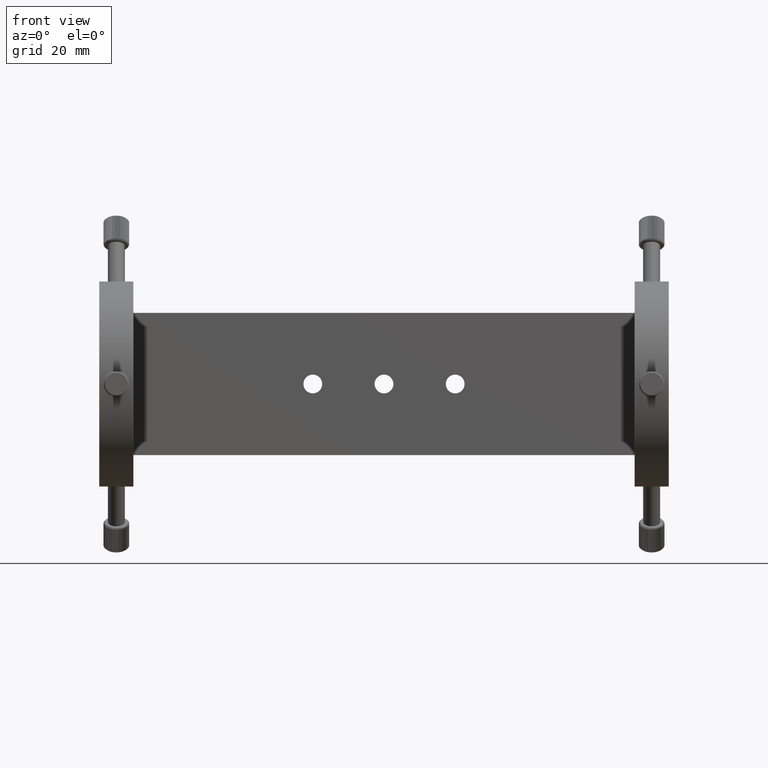
[diagram: clean part render]
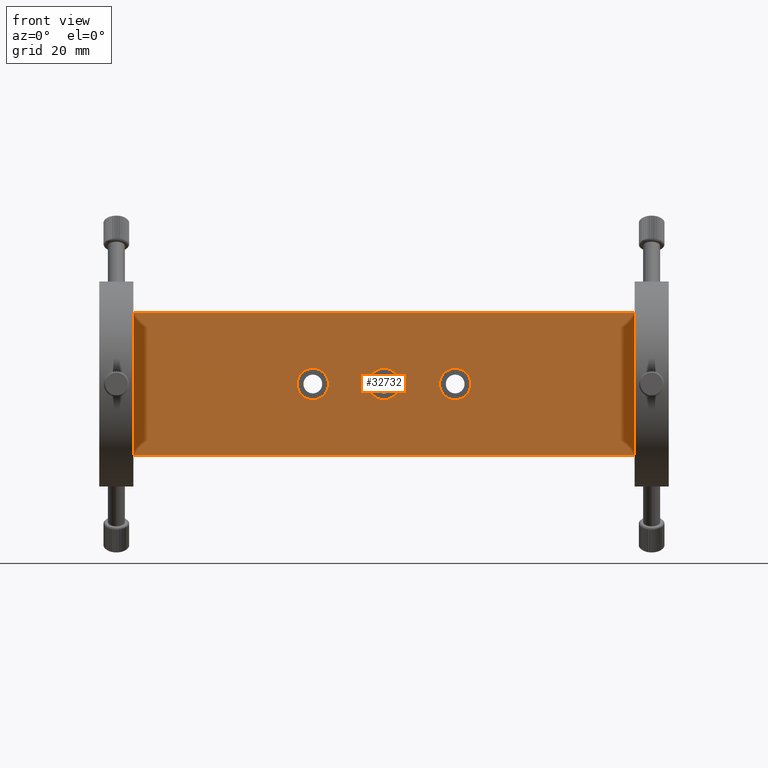
[diagram: same view with one face highlighted and labeled with its STEP entity id]
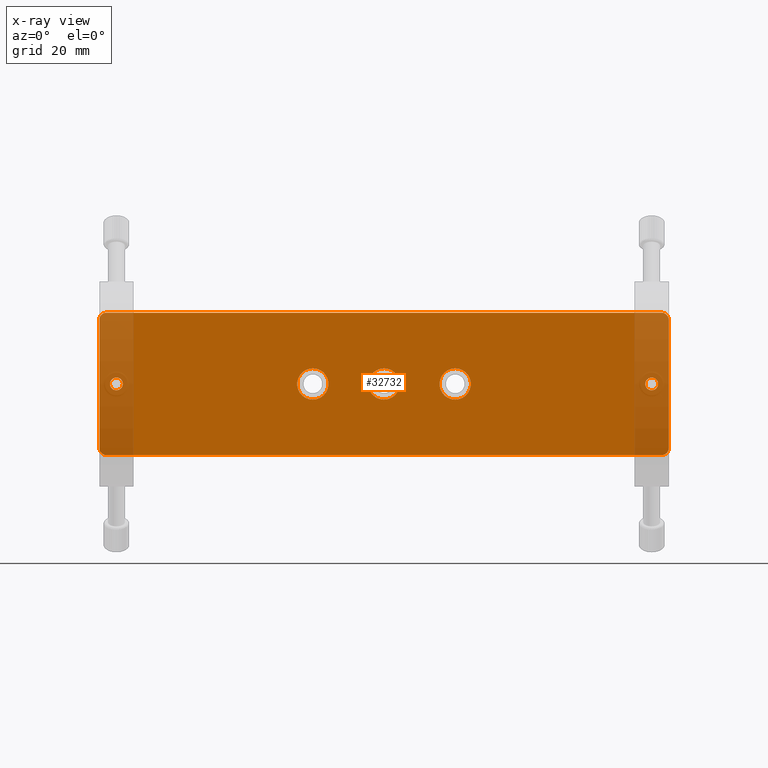
[diagram: x-ray of the same camera — body ghosted, the highlighted face saturated]
A machine part, front view. The second image highlights one B-rep face of the part: STEP entity #32732.
The next image is the same camera in x-ray: the body ghosted, the highlighted face saturated — about 12% of this face is hidden behind the body in this view.
In plain terms, the highlighted planar face has unit normal (-0, -1, 0).
Its self-contained STEP definition (entity closure, byte-faithful):
#369 = VERTEX_POINT ( 'NONE', #13891 ) ;
#569 = AXIS2_PLACEMENT_3D ( 'NONE', #16007, #11025, #31340 ) ;
#834 = EDGE_CURVE ( 'NONE', #20790, #15050, #29269, .T. ) ;
#1399 = AXIS2_PLACEMENT_3D ( 'NONE', #21660, #9252, #21546 ) ;
#1535 = CARTESIAN_POINT ( 'NONE',  ( -97.63306085376935100, -17.41295791704509100, 1.720845688168992600E-015 ) ) ;
#1548 = LINE ( 'NONE', #4691, #13552 ) ;
#1649 = AXIS2_PLACEMENT_3D ( 'NONE', #2707, #17666, #5313 ) ;
#2394 = DIRECTION ( 'NONE',  ( 0.0000000000000000000, 0.0000000000000000000, -1.000000000000000000 ) ) ;
#2640 = CARTESIAN_POINT ( 'NONE',  ( -103.6330608537693600, -17.41295791704509100, 22.50000000000000400 ) ) ;
#2707 = CARTESIAN_POINT ( 'NONE',  ( 93.86693914623070600, -17.41295791704509100, -22.49999999999998900 ) ) ;
#2836 = DIRECTION ( 'NONE',  ( 0.0000000000000000000, 0.0000000000000000000, -1.000000000000000000 ) ) ;
#3212 = CARTESIAN_POINT ( 'NONE',  ( -97.63306085376935100, -17.41295791704509100, -2.250000000000000400 ) ) ;
#3292 = CARTESIAN_POINT ( 'NONE',  ( -101.1330608537693500, -17.41295791704509100, -22.50000000000000400 ) ) ;
#3471 = VERTEX_POINT ( 'NONE', #13248 ) ;
#3520 = CIRCLE ( 'NONE', #4051, 2.250000000000002200 ) ;
#3805 = EDGE_CURVE ( 'NONE', #4912, #7347, #9199, .T. ) ;
#4012 = ORIENTED_EDGE ( 'NONE', *, *, #5073, .T. ) ;
#4051 = AXIS2_PLACEMENT_3D ( 'NONE', #30419, #18108, #2836 ) ;
#4244 = EDGE_CURVE ( 'NONE', #6293, #13812, #17506, .T. ) ;
#4691 = CARTESIAN_POINT ( 'NONE',  ( -101.1330608537693500, -17.41295791704509100, -25.00000000000000700 ) ) ;
#4876 = CARTESIAN_POINT ( 'NONE',  ( -101.1330608537693500, -17.41295791704509100, -22.50000000000000400 ) ) ;
#4905 = CARTESIAN_POINT ( 'NONE',  ( 90.36693914623070600, -17.41295791704509100, -2.249999999999989800 ) ) ;
#4912 = VERTEX_POINT ( 'NONE', #2640 ) ;
#5073 = EDGE_CURVE ( 'NONE', #3471, #369, #15885, .T. ) ;
#5178 = EDGE_LOOP ( 'NONE', ( #14198, #9719 ) ) ;
#5213 = EDGE_CURVE ( 'NONE', #7347, #26647, #24628, .T. ) ;
#5313 = DIRECTION ( 'NONE',  ( 0.0000000000000000000, 0.0000000000000000000, -1.000000000000000000 ) ) ;
#5472 = CARTESIAN_POINT ( 'NONE',  ( 96.36693914623070600, -17.41295791704509100, -22.49999999999998900 ) ) ;
#5487 = VERTEX_POINT ( 'NONE', #11991 ) ;
#5525 = DIRECTION ( 'NONE',  ( -1.438252834678956100E-032, -1.000000000000000000, 3.212344377754002500E-032 ) ) ;
#5799 = DIRECTION ( 'NONE',  ( -1.438252834678956100E-032, -1.000000000000000000, 3.212344377754002500E-032 ) ) ;
#5842 = CARTESIAN_POINT ( 'NONE',  ( -103.6330608537693600, -17.41295791704509100, -22.50000000000000400 ) ) ;
#5892 = DIRECTION ( 'NONE',  ( -1.438252834678956100E-032, -1.000000000000000000, 3.212344377754001400E-032 ) ) ;
#6293 = VERTEX_POINT ( 'NONE', #11636 ) ;
#6892 = DIRECTION ( 'NONE',  ( 0.0000000000000000000, 0.0000000000000000000, -1.000000000000000000 ) ) ;
#6935 = DIRECTION ( 'NONE',  ( -1.000000000000000000, 1.438252834678955600E-032, -5.551115123125781500E-017 ) ) ;
#7031 = ORIENTED_EDGE ( 'NONE', *, *, #834, .F. ) ;
#7030 = DIRECTION ( 'NONE',  ( -1.438252834678956100E-032, -1.000000000000000000, 3.212344377754002500E-032 ) ) ;
#7082 = ORIENTED_EDGE ( 'NONE', *, *, #25674, .F. ) ;
#7347 = VERTEX_POINT ( 'NONE', #5842 ) ;
#7530 = EDGE_CURVE ( 'NONE', #28669, #13423, #25562, .T. ) ;
#7564 = ORIENTED_EDGE ( 'NONE', *, *, #22872, .T. ) ;
#8137 = VERTEX_POINT ( 'NONE', #31501 ) ;
#8368 = VECTOR ( 'NONE', #6935, 1000.000000000000000 ) ;
#8388 = DIRECTION ( 'NONE',  ( -1.438252834678956100E-032, -1.000000000000000000, 3.212344377754002500E-032 ) ) ;
#8825 = CIRCLE ( 'NONE', #10338, 2.250000000000002200 ) ;
#9039 = CIRCLE ( 'NONE', #9903, 2.250000000000002200 ) ;
#9199 = LINE ( 'NONE', #22750, #23090 ) ;
#9252 = DIRECTION ( 'NONE',  ( -1.438252834678956100E-032, -1.000000000000000000, 3.212344377754002500E-032 ) ) ;
#9283 = CIRCLE ( 'NONE', #569, 5.499999999999999100 ) ;
#9377 = ORIENTED_EDGE ( 'NONE', *, *, #32313, .F. ) ;
#9404 = DIRECTION ( 'NONE',  ( -1.438252834678956100E-032, -1.000000000000000000, 3.212344377754002500E-032 ) ) ;
#9701 = VECTOR ( 'NONE', #27157, 1000.000000000000000 ) ;
#9719 = ORIENTED_EDGE ( 'NONE', *, *, #24407, .F. ) ;
#9854 = DIRECTION ( 'NONE',  ( 1.000000000000000000, -1.438252834678955600E-032, 5.551115123125781500E-017 ) ) ;
#9903 = AXIS2_PLACEMENT_3D ( 'NONE', #30629, #20110, #17764 ) ;
#9959 = AXIS2_PLACEMENT_3D ( 'NONE', #1535, #19588, #24918 ) ;
#10007 = DIRECTION ( 'NONE',  ( 5.551115123125782100E-017, -3.212344377754001400E-032, -1.000000000000000000 ) ) ;
#10033 = EDGE_CURVE ( 'NONE', #5487, #15616, #8825, .T. ) ;
#10338 = AXIS2_PLACEMENT_3D ( 'NONE', #24603, #9404, #32268 ) ;
#10438 = AXIS2_PLACEMENT_3D ( 'NONE', #26984, #16891, #6892 ) ;
#10649 = EDGE_LOOP ( 'NONE', ( #9377, #14459 ) ) ;
#10726 = CARTESIAN_POINT ( 'NONE',  ( -3.633060853769326700, -17.41295791704509100, 6.938893903907228400E-015 ) ) ;
#11025 = DIRECTION ( 'NONE',  ( -1.438252834678956100E-032, -1.000000000000000000, 3.212344377754002500E-032 ) ) ;
#11542 = AXIS2_PLACEMENT_3D ( 'NONE', #17360, #7030, #24799 ) ;
#11636 = CARTESIAN_POINT ( 'NONE',  ( -28.63306085376934000, -17.41295791704509100, 5.500000000000003600 ) ) ;
#11846 = CARTESIAN_POINT ( 'NONE',  ( 96.36693914623070600, -17.41295791704509100, 22.50000000000001800 ) ) ;
#11991 = CARTESIAN_POINT ( 'NONE',  ( 90.36693914623070600, -17.41295791704509100, 2.250000000000014200 ) ) ;
#12065 = ORIENTED_EDGE ( 'NONE', *, *, #5213, .T. ) ;
#12157 = FACE_BOUND ( 'NONE', #26648, .T. ) ;
#12272 = ORIENTED_EDGE ( 'NONE', *, *, #20875, .F. ) ;
#12871 = DIRECTION ( 'NONE',  ( -1.438252834678956100E-032, -1.000000000000000000, 3.212344377754002500E-032 ) ) ;
#12946 = CARTESIAN_POINT ( 'NONE',  ( 21.36693914623067800, -17.41295791704509100, -5.499999999999984000 ) ) ;
#13248 = CARTESIAN_POINT ( 'NONE',  ( 93.86693914623070600, -17.41295791704509100, 25.00000000000002100 ) ) ;
#13423 = VERTEX_POINT ( 'NONE', #11846 ) ;
#13472 = PLANE ( 'NONE',  #16658 ) ;
#13543 = EDGE_LOOP ( 'NONE', ( #12065, #7564, #28773, #15055, #14000, #4012, #16042, #28526 ) ) ;
#13552 = VECTOR ( 'NONE', #9854, 1000.000000000000000 ) ;
#13812 = VERTEX_POINT ( 'NONE', #21759 ) ;
#13891 = CARTESIAN_POINT ( 'NONE',  ( -101.1330608537693500, -17.41295791704509100, 25.00000000000000700 ) ) ;
#14000 = ORIENTED_EDGE ( 'NONE', *, *, #16584, .T. ) ;
#14094 = ORIENTED_EDGE ( 'NONE', *, *, #23536, .F. ) ;
#14198 = ORIENTED_EDGE ( 'NONE', *, *, #23958, .F. ) ;
#14459 = ORIENTED_EDGE ( 'NONE', *, *, #4244, .F. ) ;
#14474 = CARTESIAN_POINT ( 'NONE',  ( -101.1330608537693500, -17.41295791704509100, -25.00000000000000700 ) ) ;
#14556 = VERTEX_POINT ( 'NONE', #21841 ) ;
#14731 = VERTEX_POINT ( 'NONE', #27581 ) ;
#15050 = VERTEX_POINT ( 'NONE', #3212 ) ;
#15055 = ORIENTED_EDGE ( 'NONE', *, *, #7530, .T. ) ;
#15518 = AXIS2_PLACEMENT_3D ( 'NONE', #20805, #5799, #18708 ) ;
#15616 = VERTEX_POINT ( 'NONE', #4905 ) ;
#15647 = ORIENTED_EDGE ( 'NONE', *, *, #30310, .F. ) ;
#15885 = LINE ( 'NONE', #32361, #8368 ) ;
#15999 = EDGE_LOOP ( 'NONE', ( #7031, #7082 ) ) ;
#16007 = CARTESIAN_POINT ( 'NONE',  ( 21.36693914623067800, -17.41295791704509100, 1.444990668042544400E-014 ) ) ;
#16042 = ORIENTED_EDGE ( 'NONE', *, *, #19882, .T. ) ;
#16316 = DIRECTION ( 'NONE',  ( 5.551115123125781500E-017, -3.212344377754001400E-032, -1.000000000000000000 ) ) ;
#16442 = AXIS2_PLACEMENT_3D ( 'NONE', #28366, #12871, #30603 ) ;
#16584 = EDGE_CURVE ( 'NONE', #13423, #3471, #29229, .T. ) ;
#16658 = AXIS2_PLACEMENT_3D ( 'NONE', #3292, #5892, #16316 ) ;
#16891 = DIRECTION ( 'NONE',  ( -1.438252834678956100E-032, -1.000000000000000000, 3.212344377754002500E-032 ) ) ;
#17360 = CARTESIAN_POINT ( 'NONE',  ( -28.63306085376934000, -17.41295791704509100, 5.551115123125782700E-015 ) ) ;
#17506 = CIRCLE ( 'NONE', #10438, 5.499999999999999100 ) ;
#17666 = DIRECTION ( 'NONE',  ( -1.438252834678956100E-032, -1.000000000000000000, 3.212344377754002500E-032 ) ) ;
#17689 = DIRECTION ( 'NONE',  ( -1.438252834678956100E-032, -1.000000000000000000, 3.212344377754002500E-032 ) ) ;
#17764 = DIRECTION ( 'NONE',  ( 0.0000000000000000000, 0.0000000000000000000, -1.000000000000000000 ) ) ;
#17951 = AXIS2_PLACEMENT_3D ( 'NONE', #10726, #8388, #28434 ) ;
#18108 = DIRECTION ( 'NONE',  ( -1.438252834678956100E-032, -1.000000000000000000, 3.212344377754002500E-032 ) ) ;
#18624 = VERTEX_POINT ( 'NONE', #12946 ) ;
#18707 = ORIENTED_EDGE ( 'NONE', *, *, #10033, .F. ) ;
#18708 = DIRECTION ( 'NONE',  ( 0.0000000000000000000, 0.0000000000000000000, -1.000000000000000000 ) ) ;
#19336 = CIRCLE ( 'NONE', #11542, 5.499999999999999100 ) ;
#19584 = CIRCLE ( 'NONE', #1649, 2.500000000000002200 ) ;
#19588 = DIRECTION ( 'NONE',  ( -1.438252834678956100E-032, -1.000000000000000000, 3.212344377754002500E-032 ) ) ;
#19717 = FACE_BOUND ( 'NONE', #23917, .T. ) ;
#19882 = EDGE_CURVE ( 'NONE', #369, #4912, #22407, .T. ) ;
#20110 = DIRECTION ( 'NONE',  ( -1.438252834678956100E-032, -1.000000000000000000, 3.212344377754002500E-032 ) ) ;
#20790 = VERTEX_POINT ( 'NONE', #21017 ) ;
#20805 = CARTESIAN_POINT ( 'NONE',  ( 21.36693914623067800, -17.41295791704509100, 1.444990668042544400E-014 ) ) ;
#20875 = EDGE_CURVE ( 'NONE', #14556, #18624, #9283, .T. ) ;
#21017 = CARTESIAN_POINT ( 'NONE',  ( -97.63306085376935100, -17.41295791704509100, 2.250000000000003600 ) ) ;
#21021 = EDGE_CURVE ( 'NONE', #28321, #28669, #19584, .T. ) ;
#21075 = AXIS2_PLACEMENT_3D ( 'NONE', #4876, #17689, #2394 ) ;
#21298 = FACE_BOUND ( 'NONE', #15999, .T. ) ;
#21546 = DIRECTION ( 'NONE',  ( 0.0000000000000000000, 0.0000000000000000000, -1.000000000000000000 ) ) ;
#21660 = CARTESIAN_POINT ( 'NONE',  ( -101.1330608537693500, -17.41295791704509100, 22.50000000000000400 ) ) ;
#21759 = CARTESIAN_POINT ( 'NONE',  ( -28.63306085376934000, -17.41295791704509100, -5.499999999999993800 ) ) ;
#21841 = CARTESIAN_POINT ( 'NONE',  ( 21.36693914623067800, -17.41295791704509100, 5.500000000000012400 ) ) ;
#22265 = CARTESIAN_POINT ( 'NONE',  ( 96.36693914623070600, -17.41295791704509100, -22.49999999999998900 ) ) ;
#22407 = CIRCLE ( 'NONE', #1399, 2.500000000000002200 ) ;
#22750 = CARTESIAN_POINT ( 'NONE',  ( -103.6330608537693600, -17.41295791704509100, -22.50000000000000400 ) ) ;
#22872 = EDGE_CURVE ( 'NONE', #26647, #28321, #1548, .T. ) ;
#23090 = VECTOR ( 'NONE', #10007, 1000.000000000000000 ) ;
#23536 = EDGE_CURVE ( 'NONE', #15616, #5487, #3520, .T. ) ;
#23917 = EDGE_LOOP ( 'NONE', ( #15647, #12272 ) ) ;
#23958 = EDGE_CURVE ( 'NONE', #8137, #14731, #27749, .T. ) ;
#24407 = EDGE_CURVE ( 'NONE', #14731, #8137, #29740, .T. ) ;
#24603 = CARTESIAN_POINT ( 'NONE',  ( 90.36693914623070600, -17.41295791704509100, 1.215694211964546400E-014 ) ) ;
#24628 = CIRCLE ( 'NONE', #21075, 2.500000000000002200 ) ;
#24799 = DIRECTION ( 'NONE',  ( 0.0000000000000000000, 0.0000000000000000000, -1.000000000000000000 ) ) ;
#24870 = FACE_BOUND ( 'NONE', #5178, .T. ) ;
#24918 = DIRECTION ( 'NONE',  ( 0.0000000000000000000, 0.0000000000000000000, -1.000000000000000000 ) ) ;
#25562 = LINE ( 'NONE', #22265, #9701 ) ;
#25674 = EDGE_CURVE ( 'NONE', #15050, #20790, #9039, .T. ) ;
#26580 = CIRCLE ( 'NONE', #15518, 5.499999999999999100 ) ;
#26647 = VERTEX_POINT ( 'NONE', #14474 ) ;
#26648 = EDGE_LOOP ( 'NONE', ( #18707, #14094 ) ) ;
#26984 = CARTESIAN_POINT ( 'NONE',  ( -28.63306085376934000, -17.41295791704509100, 5.551115123125782700E-015 ) ) ;
#27157 = DIRECTION ( 'NONE',  ( -5.551115123125782100E-017, 3.212344377754001400E-032, 1.000000000000000000 ) ) ;
#27581 = CARTESIAN_POINT ( 'NONE',  ( -3.633060853769326300, -17.41295791704509100, 5.500000000000005300 ) ) ;
#27749 = CIRCLE ( 'NONE', #16442, 5.499999999999999100 ) ;
#28167 = DIRECTION ( 'NONE',  ( 0.0000000000000000000, 0.0000000000000000000, -1.000000000000000000 ) ) ;
#28321 = VERTEX_POINT ( 'NONE', #31631 ) ;
#28366 = CARTESIAN_POINT ( 'NONE',  ( -3.633060853769326700, -17.41295791704509100, 6.938893903907228400E-015 ) ) ;
#28434 = DIRECTION ( 'NONE',  ( 7.885106708985487800E-017, 0.0000000000000000000, -1.000000000000000000 ) ) ;
#28526 = ORIENTED_EDGE ( 'NONE', *, *, #3805, .T. ) ;
#28669 = VERTEX_POINT ( 'NONE', #5472 ) ;
#28773 = ORIENTED_EDGE ( 'NONE', *, *, #21021, .T. ) ;
#28838 = FACE_OUTER_BOUND ( 'NONE', #13543, .T. ) ;
#29229 = CIRCLE ( 'NONE', #29284, 2.500000000000002200 ) ;
#29269 = CIRCLE ( 'NONE', #9959, 2.250000000000002200 ) ;
#29284 = AXIS2_PLACEMENT_3D ( 'NONE', #30839, #5525, #28167 ) ;
#29740 = CIRCLE ( 'NONE', #17951, 5.499999999999999100 ) ;
#30310 = EDGE_CURVE ( 'NONE', #18624, #14556, #26580, .T. ) ;
#30419 = CARTESIAN_POINT ( 'NONE',  ( 90.36693914623070600, -17.41295791704509100, 1.215694211964546400E-014 ) ) ;
#30603 = DIRECTION ( 'NONE',  ( 7.885106708985487800E-017, 0.0000000000000000000, -1.000000000000000000 ) ) ;
#30629 = CARTESIAN_POINT ( 'NONE',  ( -97.63306085376935100, -17.41295791704509100, 1.720845688168992600E-015 ) ) ;
#30839 = CARTESIAN_POINT ( 'NONE',  ( 93.86693914623070600, -17.41295791704509100, 22.50000000000001800 ) ) ;
#31340 = DIRECTION ( 'NONE',  ( 0.0000000000000000000, 0.0000000000000000000, -1.000000000000000000 ) ) ;
#31501 = CARTESIAN_POINT ( 'NONE',  ( -3.633060853769326300, -17.41295791704509100, -5.499999999999992000 ) ) ;
#31631 = CARTESIAN_POINT ( 'NONE',  ( 93.86693914623070600, -17.41295791704509100, -24.99999999999999300 ) ) ;
#32268 = DIRECTION ( 'NONE',  ( 0.0000000000000000000, 0.0000000000000000000, -1.000000000000000000 ) ) ;
#32313 = EDGE_CURVE ( 'NONE', #13812, #6293, #19336, .T. ) ;
#32361 = CARTESIAN_POINT ( 'NONE',  ( -101.1330608537693500, -17.41295791704509100, 25.00000000000000700 ) ) ;
#32435 = FACE_BOUND ( 'NONE', #10649, .T. ) ;
#32732 = ADVANCED_FACE ( 'NONE', ( #12157, #21298, #32435, #24870, #19717, #28838 ), #13472, .T. ) ;